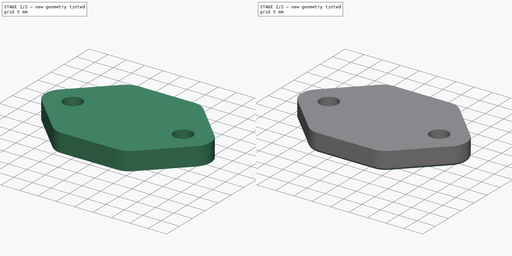
[diagram: build sequence overview — one tinted view per stage of 2, left to right]
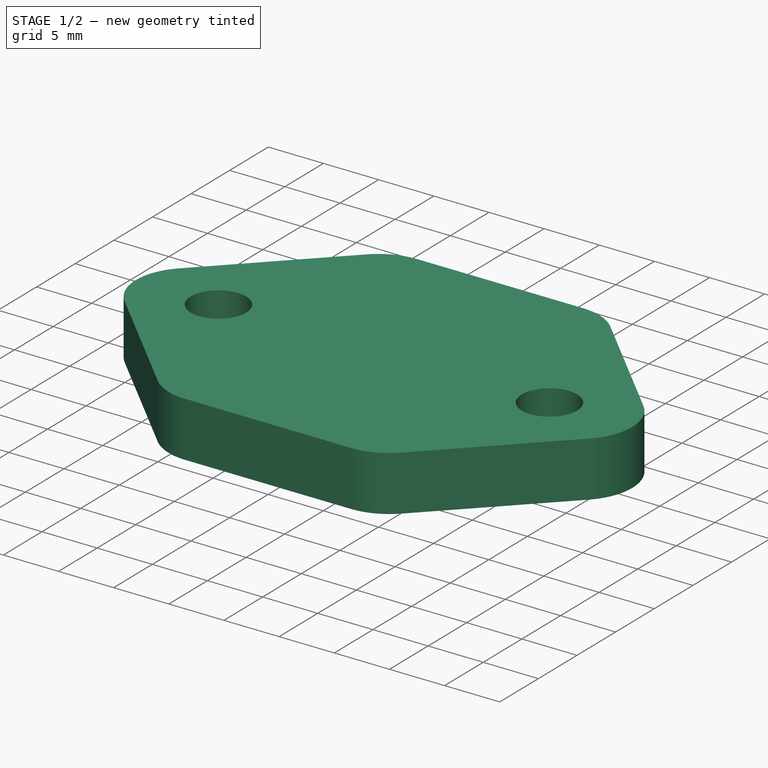
[diagram: stage 1 of 2 — iso view after this stage's code; geometry added in this stage tinted green]
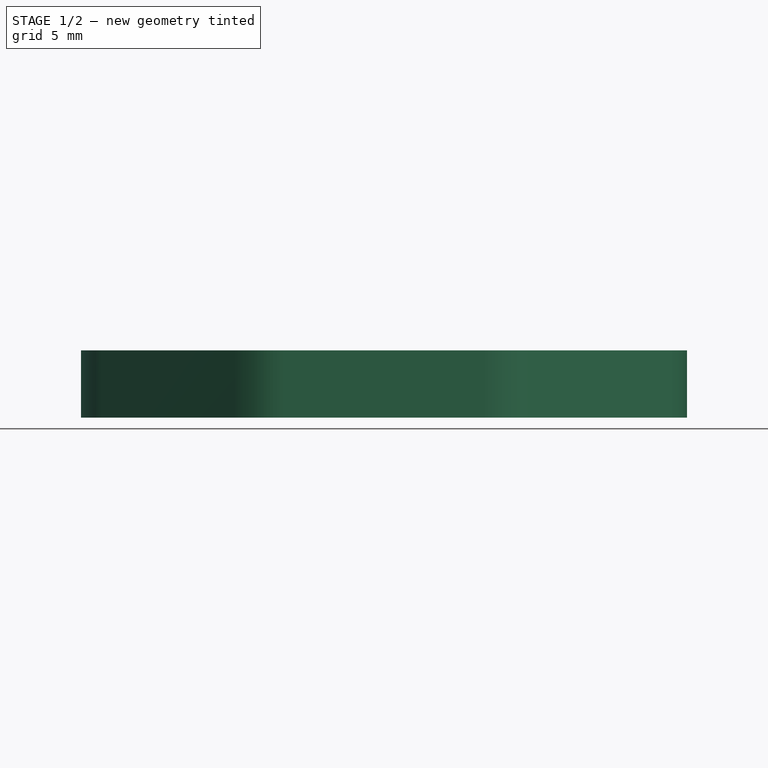
[diagram: stage 1 of 2 — front view after this stage's code; geometry added in this stage tinted green]
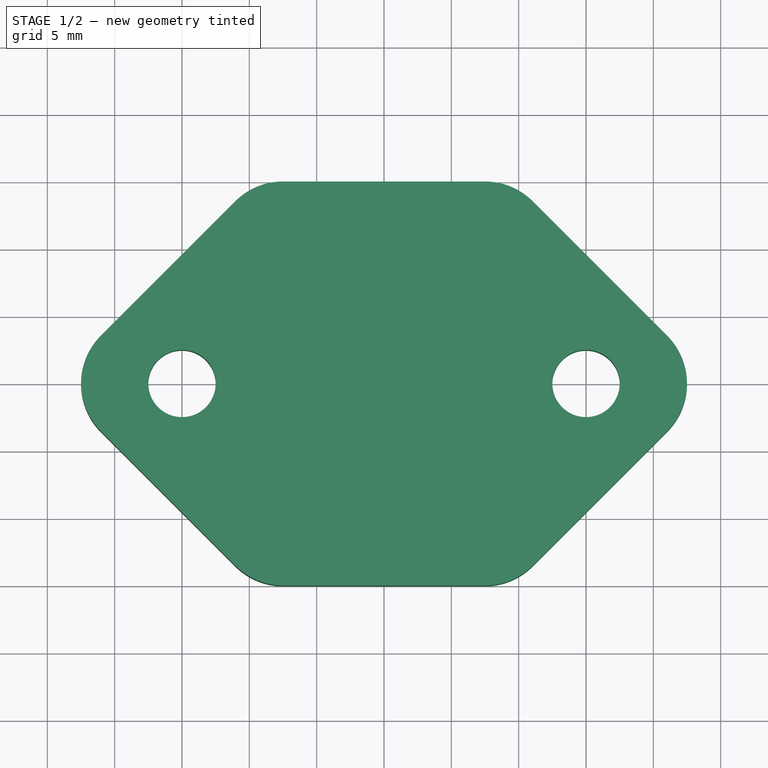
[diagram: stage 1 of 2 — top view after this stage's code; geometry added in this stage tinted green]
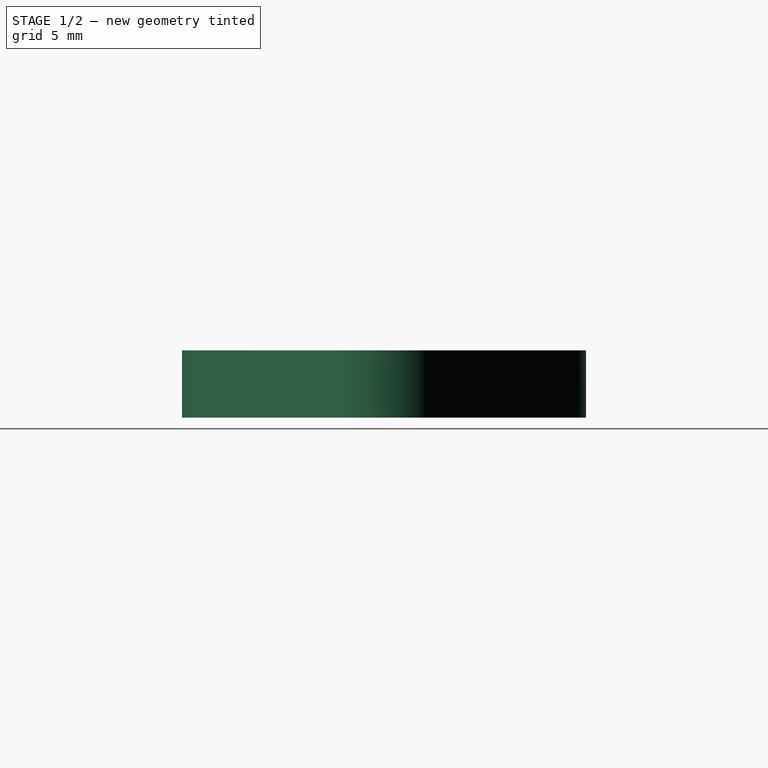
[diagram: stage 1 of 2 — right view after this stage's code; geometry added in this stage tinted green]
FCSTD DOCUMENT  (FreeCAD 0.20RUnknown)
Label: CamperFix01
License: All rights reserved
LicenseURL: http://en.wikipedia.org/wiki/All_rights_reserved
objects: Sketcher::SketchObject×2, PartDesign::Fillet×2, PartDesign::Pad×1, PartDesign::Hole×1, PartDesign::Body×1
note: 11 computed .brp shape members not serialized (recipe doc carries the construction recipe); baked Part::Feature solids carry a one-line shape summary decoded from their .brp

FEATURE [Sketcher::SketchObject] Sketch
  FullyConstrained = true
  MapMode = 5
  Support = -> [XY_Plane]
  sketch-geometry (18):
    g0: LineSegment StartX=-21.0355 StartY=3.53553 StartZ=0 EndX=-9.57107 EndY=15 EndZ=0
    g1: LineSegment StartX=-9.57107 StartY=15 StartZ=0 EndX=9.57107 EndY=15 EndZ=0
    g2: LineSegment StartX=9.57107 StartY=15 StartZ=0 EndX=21.0355 EndY=3.53553 EndZ=0
    g3: LineSegment StartX=21.0355 StartY=-3.53553 StartZ=0 EndX=9.57107 EndY=-15 EndZ=0
    g4: LineSegment StartX=9.57107 StartY=-15 StartZ=0 EndX=-9.57107 EndY=-15 EndZ=0
    g5: LineSegment StartX=-9.57107 StartY=-15 StartZ=0 EndX=-21.0355 EndY=-3.53553 EndZ=0
    g6: Circle CenterX=-15 CenterY=0 CenterZ=0 NormalX=0 NormalY=0 NormalZ=1 AngleXU=0 Radius=2.5
    g7: Circle CenterX=15 CenterY=0 CenterZ=0 NormalX=0 NormalY=0 NormalZ=1 AngleXU=0 Radius=2.5
    g8: LineSegment StartX=-15 StartY=0 StartZ=0 EndX=0 EndY=0 EndZ=0
    g9: LineSegment StartX=0 StartY=0 StartZ=0 EndX=15 EndY=0 EndZ=0
    g10: LineSegment StartX=-24.5711 StartY=0 StartZ=0 EndX=-15 EndY=0 EndZ=0
    g11: LineSegment StartX=15 StartY=0 StartZ=0 EndX=24.5711 EndY=0 EndZ=0
    g12: ArcOfCircle CenterX=17.5 CenterY=-2e-16 CenterZ=0 NormalX=0 NormalY=0 NormalZ=1 AngleXU=0 Radius=5 StartAngle=5.49779 EndAngle=7.06858
    g13: GeomPoint X=24.5711 Y=0 Z=0
    g14: ArcOfCircle CenterX=-17.5 CenterY=-9e-16 CenterZ=0 NormalX=0 NormalY=0 NormalZ=1 AngleXU=0 Radius=5 StartAngle=2.35619 EndAngle=3.92699
    g15: GeomPoint X=-24.5711 Y=0 Z=0
    g16: GeomPoint X=-22.5 Y=0 Z=0
    g17: GeomPoint X=-17.5 Y=0 Z=0
  constraints (44):
    c: PointOnObject(g15,g-1)
    c: Coincident(g0,g1)
    c: Horizontal(g1)
    c: Coincident(g1,g2)
    c: PointOnObject(g13,g-1)
    c: Coincident(g3,g4)
    c: Horizontal(g4)
    c: Coincident(g4,g5)
    c: PointOnObject(g6,g-1)
    c: PointOnObject(g7,g-1)
    c: Equal(g1,g4)
    c: Perpendicular(g5,g0)
    c: Coincident(g8,g6)
    c: Coincident(g8,g-1)
    c: Coincident(g8,g9)
    c: Coincident(g9,g7)
    c: Equal(g8,g9)
    c: Coincident(g10,g15)
    c: Coincident(g10,g6)
    c: Coincident(g11,g7)
    c: Coincident(g11,g13)
    c: Equal(g10,g11)
    c: DistanceX(g6,g7) = 30
    c: DistanceY(g4,g0) = 30
    c: PointOnObject(g13,g2)
    c: PointOnObject(g13,g3)
    c: Tangent(g2,g12) = 1.5708
    c: Tangent(g3,g12) = 1.5708
    c: PointOnObject(g15,g0)
    c: PointOnObject(g15,g5)
    c: Tangent(g0,g14) = 1.5708
    c: Tangent(g5,g14) = 1.5708
    c: Equal(g14,g12)
    c: Radius(g14) = 5
    c: PointOnObject(g16,g14)
    c: PointOnObject(g16,g10)
    c: PointOnObject(g17,g10)
    c: PointOnObject(g17,g6)
    c: DistanceX(g16,g17) = 5
    c: Diameter(g6) = 5
    c: Perpendicular(g3,g2)
    c: Equal(g0,g5)
    c: Equal(g2,g3)
    c: Equal(g7,g6)
FEATURE [PartDesign::Pad] Pad
  Direction = (0,0,1)
  Length = 5
  Length2 = 10
  Profile = -> Sketch
  ReferenceAxis = -> Sketch [N_Axis]
  Type = 0
FEATURE [PartDesign::Fillet] Fillet
  Base = -> Pad [Edge14,Edge17,Edge5,Edge2]
  BaseFeature = -> Pad
  Radius = 5
  SupportTransform = false
  UseAllEdges = false
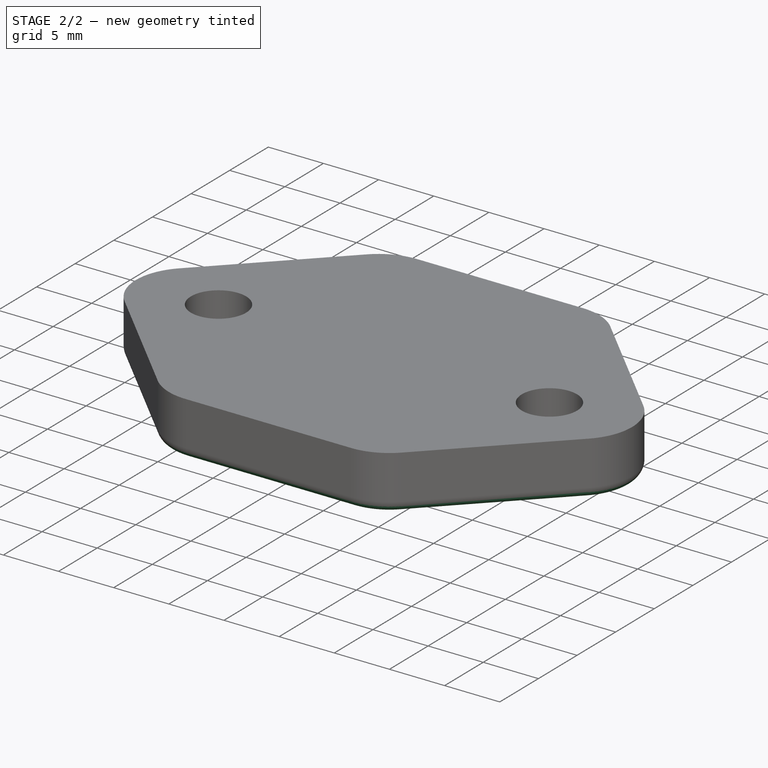
[diagram: stage 2 of 2 — iso view after this stage's code; geometry added in this stage tinted green]
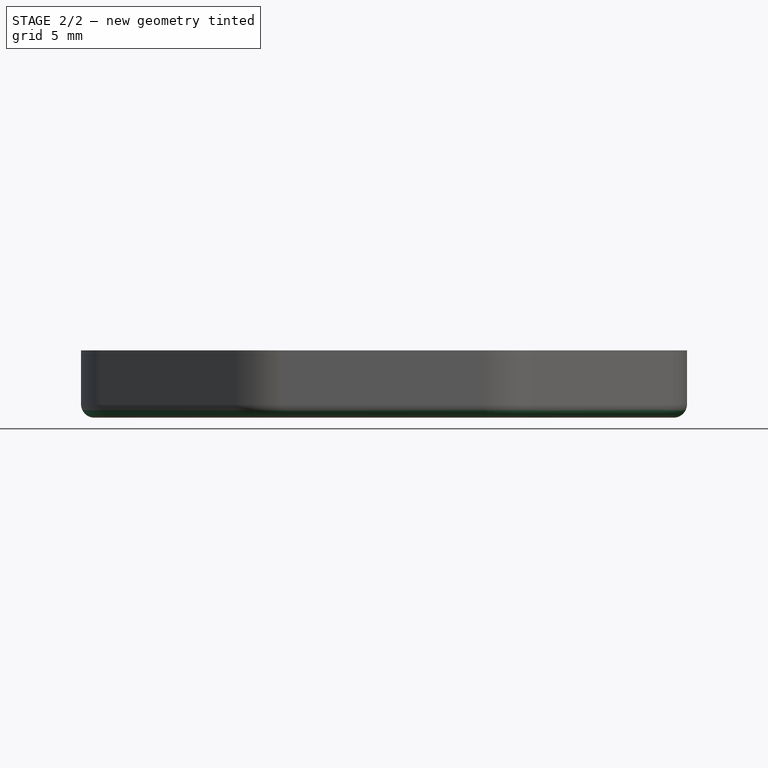
[diagram: stage 2 of 2 — front view after this stage's code; geometry added in this stage tinted green]
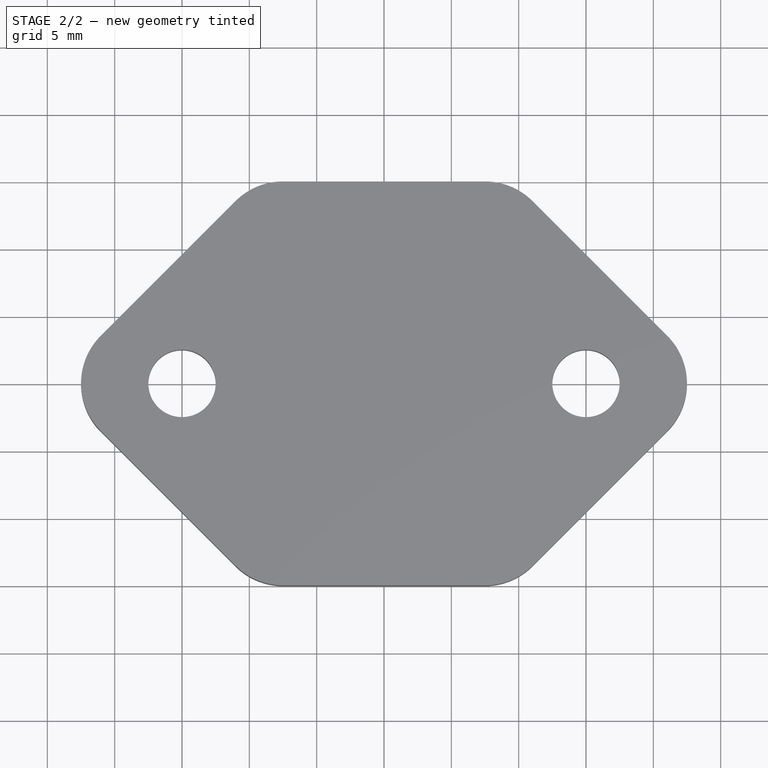
[diagram: stage 2 of 2 — top view after this stage's code; geometry added in this stage tinted green]
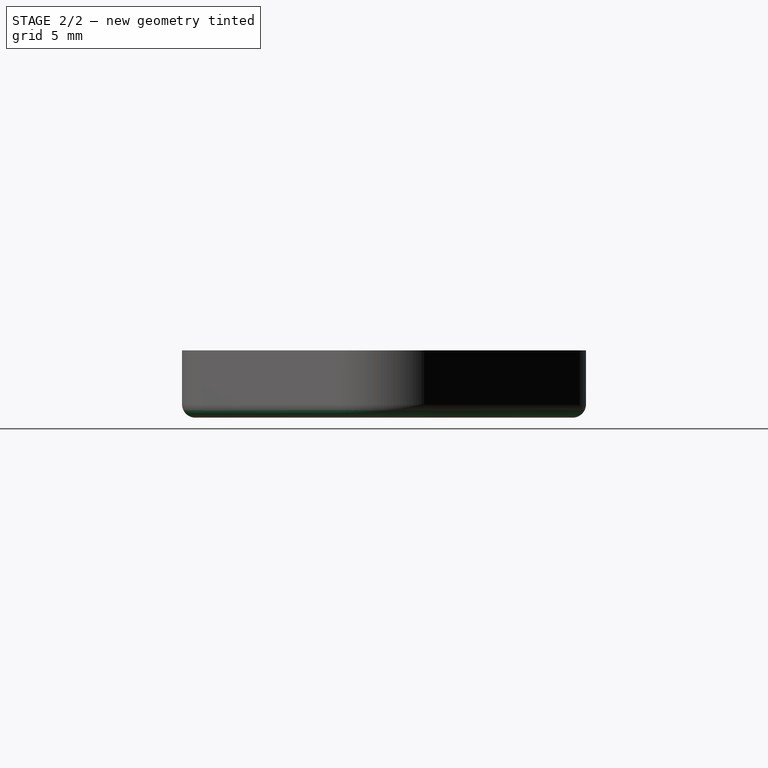
[diagram: stage 2 of 2 — right view after this stage's code; geometry added in this stage tinted green]
FEATURE [PartDesign::Fillet] Fillet001
  Base = -> Fillet [Face2]
  BaseFeature = -> Fillet
  Radius = 1
  SupportTransform = false
  UseAllEdges = false
FEATURE [Sketcher::SketchObject] Sketch001
  ExternalGeometry = -> [Sketch]
  FullyConstrained = true
  MapMode = 5
  Placement = pos=(0,0,0) rot=(1,0,0;3.14159rad)
  Support = -> [Pad]
  sketch-geometry (2):
    g0: Circle CenterX=-15 CenterY=0 CenterZ=0 NormalX=0 NormalY=0 NormalZ=1 AngleXU=0 Radius=6
    g1: Circle CenterX=15 CenterY=0 CenterZ=0 NormalX=0 NormalY=0 NormalZ=1 AngleXU=0 Radius=6
  constraints (4):
    c: Coincident(g1,g-4)
    c: Tangent(g0,g-3) = -1.5708
    c: Equal(g0,g1)
    c: Diameter(g0) = 12
FEATURE [PartDesign::Hole] Hole
  BaseFeature = -> Fillet001
  CustomThreadClearance = 0
  Depth = 118.109
  DepthType = 1
  Diameter = 5
  DrillForDepth = false
  DrillPoint = 1
  DrillPointAngle = 118
  HoleCutCountersinkAngle = 90
  HoleCutCustomValues = false
  HoleCutDepth = 0
  HoleCutDiameter = 8
  HoleCutType = 2
  ModelThread = false
  Profile = -> Sketch001
  Tapered = false
  TaperedAngle = 90
  ThreadClass = 0
  ThreadDepth = 118.109
  ThreadDepthType = 0
  ThreadDirection = 0
  ThreadFit = 0
  ThreadSize = 0
  ThreadType = 0
  Threaded = false
  UseCustomThreadClearance = false
FEATURE [PartDesign::Body] Body
  Group = -> [Sketch,Pad,Fillet,Fillet001,Sketch001,Hole]
  Origin = -> Origin
  Tip = -> Hole
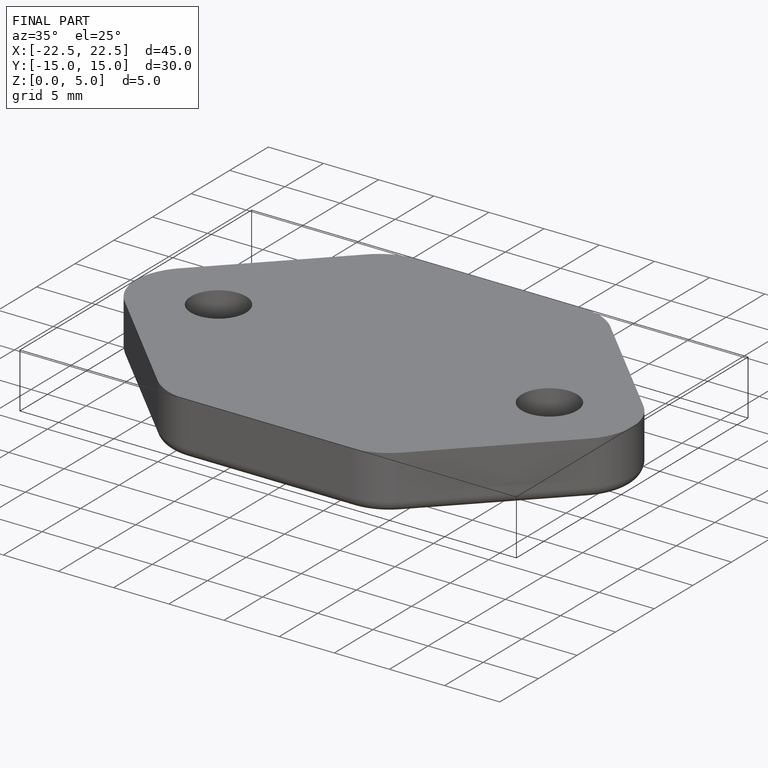
[diagram: finished part — iso view with bounding-box wireframe]
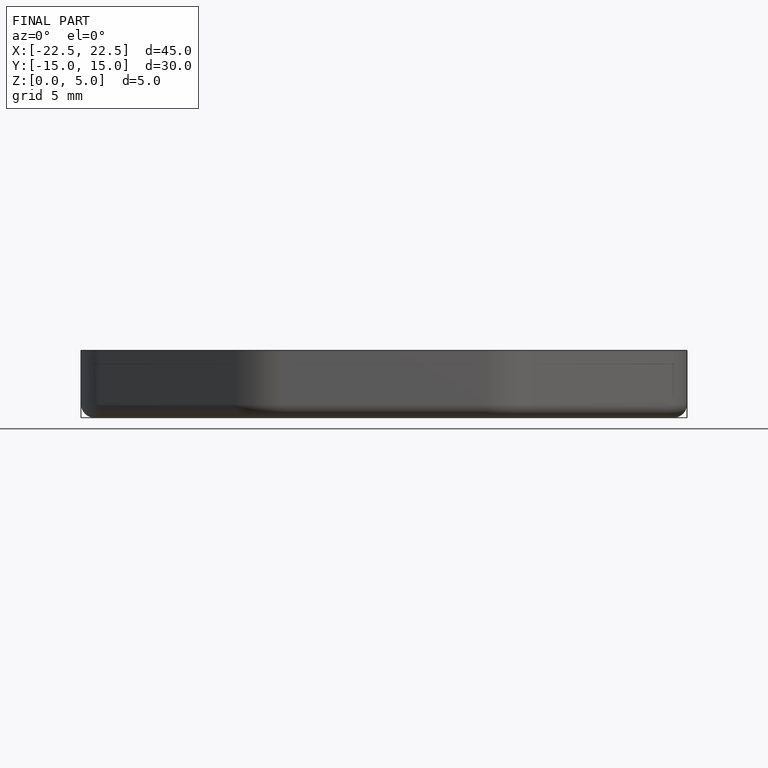
[diagram: finished part — front view with bounding-box wireframe]
